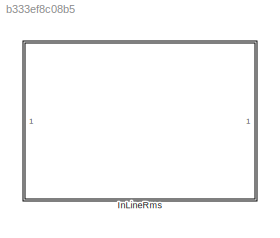
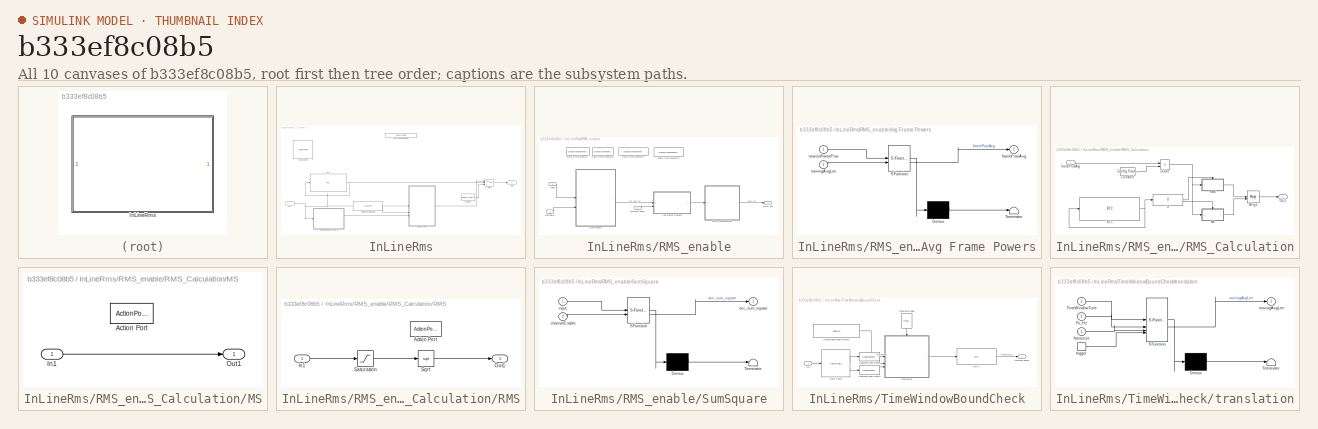
[diagram: thumbnail index - all 10 canvases of the model, root first then tree order]
MODEL slx_b333ef8c08b5
KIND library
CONFIG AbsTol = auto
CONFIG EnableMultiTasking = off
CONFIG FixedStep = auto
CONFIG MaxStep = auto
CONFIG MinStep = auto
CONFIG RelTol = 1e-3
CONFIG SampleTimeConstraint = Unconstrained
CONFIG SolverName = VariableStepAuto
CONFIG StartTime = 0.0
CONFIG StopTime = 10.0
BLOCK [SubSystem] InLineRms
BLOCK [Constant] InLineRms/Constant
  OutDataTypeStr = single
  Value = zeros(1,Config.NumIn)
  VectorParams1D = off
BLOCK [Reference] InLineRms/FeaturePath  REF=FeaturePath/FeaturePath
  SourceBlock = FeaturePath/FeaturePath
  SourceProductName = Bose Talaria
  SourceType = Talaria Feature Path
BLOCK [Reference] InLineRms/HandyDefaultConfigFile  REF=HandyTextFile/HandyTextFile
  SourceBlock = HandyTextFile/HandyTextFile
  SourceProductName = Bose Talaria
  SourceType = Talaria Handy Text File
BLOCK [Outport] InLineRms/RMS
BLOCK [Reference] InLineRms/RMSChannelEnable  REF=TuneVar/TuneTOP
  SourceBlock = TuneVar/TuneTOP
  SourceProductName = Bose Talaria
  SourceType = Talaria Trivial Tune TOP
BLOCK [SubSystem] InLineRms/RMS_enable
  TreatAsAtomicUnit = on
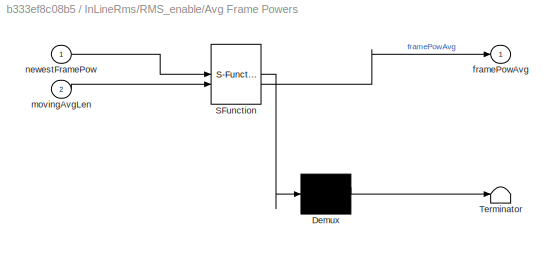
BLOCK [SubSystem] InLineRms/RMS_enable/Avg Frame Powers
  ErrorFcn = Stateflow.Translate.translate
  PermitHierarchicalResolution = ExplicitOnly
  SFBlockType = MATLAB Function
  TreatAsAtomicUnit = on
BLOCK [Demux] InLineRms/RMS_enable/Avg Frame Powers/ Demux 
  Outputs = 1
BLOCK [S-Function] InLineRms/RMS_enable/Avg Frame Powers/ SFunction 
  EnableBusSupport = off
  FunctionName = sf_sfun
  PortCounts = [2 2]
  SFcnIsStateOwnerBlock = off
  SFunctionDeploymentMode = off
  Tag = Stateflow S-Function 5
BLOCK [Terminator] InLineRms/RMS_enable/Avg Frame Powers/ Terminator 
BLOCK [Outport] InLineRms/RMS_enable/Avg Frame Powers/framePowAvg
BLOCK [Inport] InLineRms/RMS_enable/Avg Frame Powers/movingAvgLen
  Port = 2
BLOCK [Inport] InLineRms/RMS_enable/Avg Frame Powers/newestFramePow
BLOCK [DataStoreMemory] InLineRms/RMS_enable/Data Store Memory
  DataStoreName = acc_sum
  InitialValue = zeros(1,Config.NumIn)
  OutDataTypeStr = single
  ShowAdditionalParam = off
  SignalType = real
  VectorParams1D = off
BLOCK [DataStoreMemory] InLineRms/RMS_enable/Data Store Memory1
  DataStoreName = framePowBuff
  InitialValue = zeros(1512,Config.NumIn)
  OutDataTypeStr = single
  ReadBeforeWriteMsg = warning
  ShowAdditionalParam = off
  SignalType = real
  VectorParams1D = off
  WriteAfterReadMsg = warning
  WriteAfterWriteMsg = warning
BLOCK [DataStoreMemory] InLineRms/RMS_enable/Data Store Memory2
  DataStoreName = framePowBuffWriteIndx
  InitialValue = 1
  OutDataTypeStr = single
  ReadBeforeWriteMsg = warning
  ShowAdditionalParam = off
  SignalType = real
  WriteAfterReadMsg = warning
  WriteAfterWriteMsg = warning
BLOCK [DataStoreMemory] InLineRms/RMS_enable/Data Store Memory4
  DataStoreName = framePowAvgAccum
  InitialValue = zeros(1,Config.NumIn)
  OutDataTypeStr = single
  ReadBeforeWriteMsg = warning
  ShowAdditionalParam = off
  SignalType = real
  VectorParams1D = off
  WriteAfterReadMsg = warning
  WriteAfterWriteMsg = warning
BLOCK [SubSystem] InLineRms/RMS_enable/RMS_Calculation
  TreatAsAtomicUnit = on
BLOCK [Constant] InLineRms/RMS_enable/RMS_Calculation/Constant
  OutDataTypeStr = single
  Value = Config.FrameSize
BLOCK [Product] InLineRms/RMS_enable/RMS_Calculation/Divide
  Inputs = */
BLOCK [If] InLineRms/RMS_enable/RMS_Calculation/If
  IfExpression = u1 == 1
BLOCK [SubSystem] InLineRms/RMS_enable/RMS_Calculation/MS
  TreatAsAtomicUnit = on
BLOCK [ActionPort] InLineRms/RMS_enable/RMS_Calculation/MS/Action Port
BLOCK [Inport] InLineRms/RMS_enable/RMS_Calculation/MS/In1
BLOCK [Outport] InLineRms/RMS_enable/RMS_Calculation/MS/Out1
BLOCK [Merge] InLineRms/RMS_enable/RMS_Calculation/Merge
BLOCK [Outport] InLineRms/RMS_enable/RMS_Calculation/Out1
BLOCK [SubSystem] InLineRms/RMS_enable/RMS_Calculation/RMS
  TreatAsAtomicUnit = on
BLOCK [ActionPort] InLineRms/RMS_enable/RMS_Calculation/RMS/Action Port
BLOCK [Inport] InLineRms/RMS_enable/RMS_Calculation/RMS/In1
BLOCK [Outport] InLineRms/RMS_enable/RMS_Calculation/RMS/Out1
BLOCK [Saturate] InLineRms/RMS_enable/RMS_Calculation/RMS/Saturation
  LinearizeAsGain = off
  LowerLimit = 0
  UpperLimit = 32767
  ZeroCross = off
BLOCK [Sqrt] InLineRms/RMS_enable/RMS_Calculation/RMS/Sqrt
BLOCK [Reference] InLineRms/RMS_enable/RMS_Calculation/RTC  REF=RTC/RTC
  SourceBlock = RTC/RTC
  SourceProductName = Bose Talaria
  SourceType = Talaria RTC Receive
BLOCK [Inport] InLineRms/RMS_enable/RMS_Calculation/framePowAvg
BLOCK [Outport] InLineRms/RMS_enable/RMS_out
BLOCK [SubSystem] InLineRms/RMS_enable/SumSquare
  ErrorFcn = Stateflow.Translate.translate
  PermitHierarchicalResolution = ExplicitOnly
  SFBlockType = MATLAB Function
  TreatAsAtomicUnit = on
BLOCK [Demux] InLineRms/RMS_enable/SumSquare/ Demux 
  Outputs = 1
BLOCK [S-Function] InLineRms/RMS_enable/SumSquare/ SFunction 
  EnableBusSupport = off
  FunctionName = sf_sfun
  Parameters = numIn
  PortCounts = [2 2]
  SFcnIsStateOwnerBlock = off
  SFunctionDeploymentMode = off
  Tag = Stateflow S-Function 7
BLOCK [Terminator] InLineRms/RMS_enable/SumSquare/ Terminator 
BLOCK [Outport] InLineRms/RMS_enable/SumSquare/acc_sum_square
BLOCK [Inport] InLineRms/RMS_enable/SumSquare/channelEnable
  Port = 2
BLOCK [Inport] InLineRms/RMS_enable/SumSquare/input
BLOCK [Inport] InLineRms/RMS_enable/chEnable
  Port = 2
BLOCK [Inport] InLineRms/RMS_enable/input
BLOCK [Inport] InLineRms/RMS_enable/movingAvgLen
  Port = 3
BLOCK [Reference] InLineRms/RTC  REF=RTC/RTC
  SourceBlock = RTC/RTC
  SourceProductName = Bose Talaria
  SourceType = Talaria RTC Receive
BLOCK [Switch] InLineRms/Switch
  Criteria = u2 > Threshold
  InputSameDT = off
  SaturateOnIntegerOverflow = off
BLOCK [SubSystem] InLineRms/TimeWindowBoundCheck
BLOCK [Reference] InLineRms/TimeWindowBoundCheck/Audio Stats  REF=AudioStats/AudioStats
  SourceBlock = AudioStats/AudioStats
  SourceProductName = Bose Talaria
  SourceType = Talaria Audio Statistics
BLOCK [Reference] InLineRms/TimeWindowBoundCheck/Captured Tune Const  REF=TuneVar/CapturedTuneConst
  SourceBlock = TuneVar/CapturedTuneConst
  SourceProductName = Bose Talaria
  SourceType = Talaria Captured Constant
BLOCK [Reference] InLineRms/TimeWindowBoundCheck/Captured Tune Const1  REF=TuneVar/CapturedTuneConst
  SourceBlock = TuneVar/CapturedTuneConst
  SourceProductName = Bose Talaria
  SourceType = Talaria Captured Constant
BLOCK [Inport] InLineRms/TimeWindowBoundCheck/In1
BLOCK [Reference] InLineRms/TimeWindowBoundCheck/TOP1  REF=TOP/TOP
  SourceBlock = TOP/TOP
  SourceProductName = Bose Talaria
  SourceType = Talaria Target Overlay Parameter
BLOCK [Reference] InLineRms/TimeWindowBoundCheck/TimeWindowTuneVariable  REF=TuneVar/TuneVar
  SourceBlock = TuneVar/TuneVar
  SourceProductName = Bose Talaria
  SourceType = Talaria Tune Variable
BLOCK [Reference] InLineRms/TimeWindowBoundCheck/TranslateTrigger  REF=TuneVar/TranslateTrigger
  NameLocation = left
  SourceBlock = TuneVar/TranslateTrigger
  SourceProductName = Bose Talaria
  SourceType = Talaria Translate Trigger
BLOCK [Outport] InLineRms/TimeWindowBoundCheck/movingAvgLen
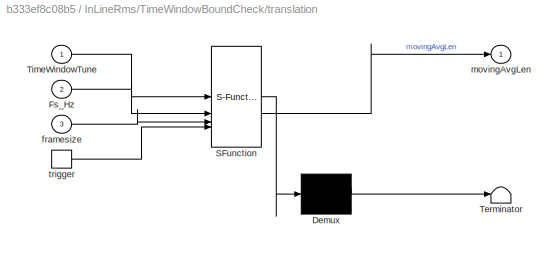
BLOCK [SubSystem] InLineRms/TimeWindowBoundCheck/translation
  ErrorFcn = Stateflow.Translate.translate
  PermitHierarchicalResolution = ExplicitOnly
  SFBlockType = MATLAB Function
  TreatAsAtomicUnit = on
BLOCK [Demux] InLineRms/TimeWindowBoundCheck/translation/ Demux 
  Outputs = 1
BLOCK [S-Function] InLineRms/TimeWindowBoundCheck/translation/ SFunction 
  EnableBusSupport = off
  FunctionName = sf_sfun
  Parameters = timeWindowBounds
  PortCounts = [4 2]
  SFcnIsStateOwnerBlock = off
  SFunctionDeploymentMode = off
  Tag = Stateflow S-Function 8
BLOCK [Terminator] InLineRms/TimeWindowBoundCheck/translation/ Terminator 
BLOCK [Inport] InLineRms/TimeWindowBoundCheck/translation/Fs_Hz
  Port = 2
BLOCK [Inport] InLineRms/TimeWindowBoundCheck/translation/TimeWindowTune
BLOCK [Inport] InLineRms/TimeWindowBoundCheck/translation/framesize
  Port = 3
BLOCK [Outport] InLineRms/TimeWindowBoundCheck/translation/movingAvgLen
BLOCK [TriggerPort] InLineRms/TimeWindowBoundCheck/translation/trigger
  ShowOutputPort = on
  StatesWhenEnabling = held
  TriggerType = function-call
  VariantControl = Variant
BLOCK [Inport] InLineRms/input
CHART InLineRms/RMS_enable/Avg Frame Powers states=1 transitions=1
  STATE_LABEL 'eML_blk_kernel()'
  STATE_LABEL 'SCRIPT:\nfunction framePowAvg = fcn(newestFramePow, movingAvgLen)\n%#codegen\n% datastore memory\nglobal framePowBuff;\nglobal framePowBuffWriteIndx;\nglobal framePowAvgAccum;\n%\n%\nbuffLen = single(length(framePowBuff));\n% Put newest frame power in buffer\nframePowBuff(framePowBuffWriteIndx,:) = newestFramePow;\n% get read index of old frame power to subtract from running sum\nframePowBuffReadIndx = framePo...<+552ch>'
CHART InLineRms/RMS_enable/SumSquare states=1 transitions=1
  STATE_LABEL 'eML_blk_kernel()'
  STATE_LABEL 'SCRIPT:\nfunction acc_sum_square  = sumsquare(input, channelEnable, numIn)\n    %#codegen\n    % datastore memory to capture the sum of squares value\n    global acc_sum;\n    \n    % Compute sum_of_squares if corresponding channel is enabled(which is a Tune message)\n    for ch = 1:numIn\n        acc_sum(ch) = 0;\n        if(channelEnable(ch) == 1)\n            acc_sum(ch) = acc_sum(ch)+ sum(input(:,ch).^2...<+57ch>'
CHART InLineRms/TimeWindowBoundCheck/translation states=1 transitions=1
  STATE_LABEL 'eML_blk_kernel()'
  STATE_LABEL 'SCRIPT:\nfunction movingAvgLen = fcn(TimeWindowTune, Fs_Hz, framesize, timeWindowBounds)\n\n% datastore memory to capture block size\n% TimeWindow is a tune parameter that specifies the duration over which the RMS value should be \n% calculated.  This duration is specified in milli seconds, and is in the range of 1 milli second\n% to 1000 milli seconds. If it is configured > 1000 or < 1 then parameter v...<+805ch>'
CHART  states=0 transitions=0
CHART  states=0 transitions=0
CHART  states=0 transitions=0
